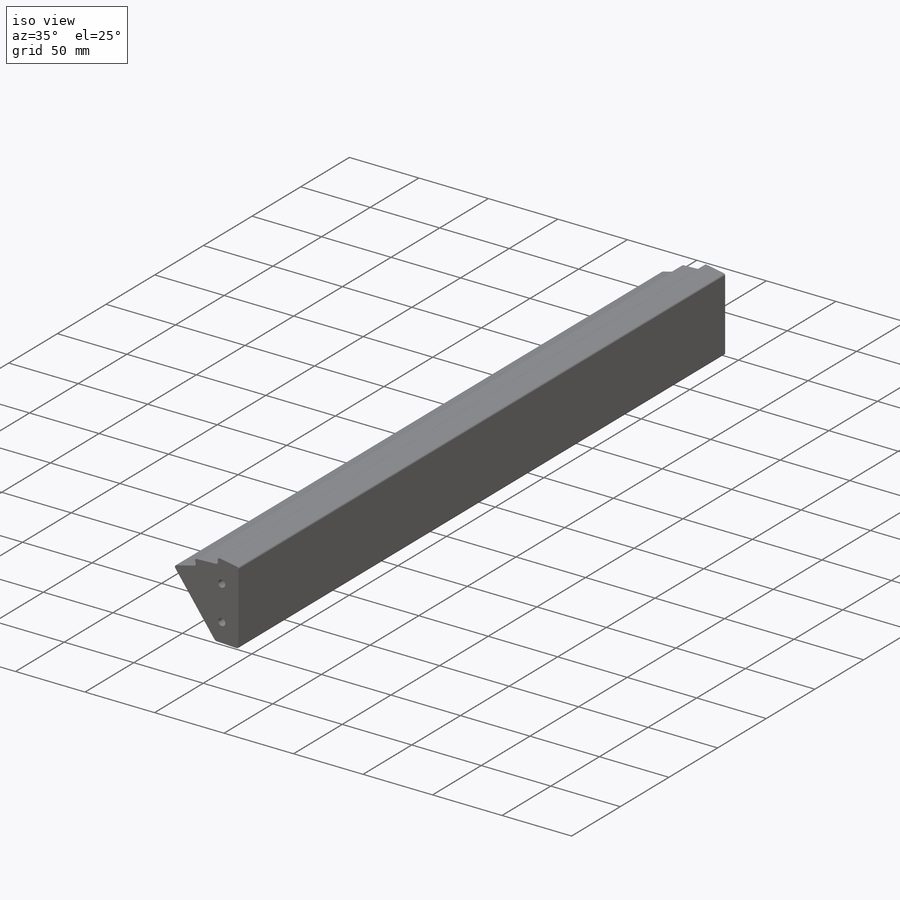
[diagram: iso view]
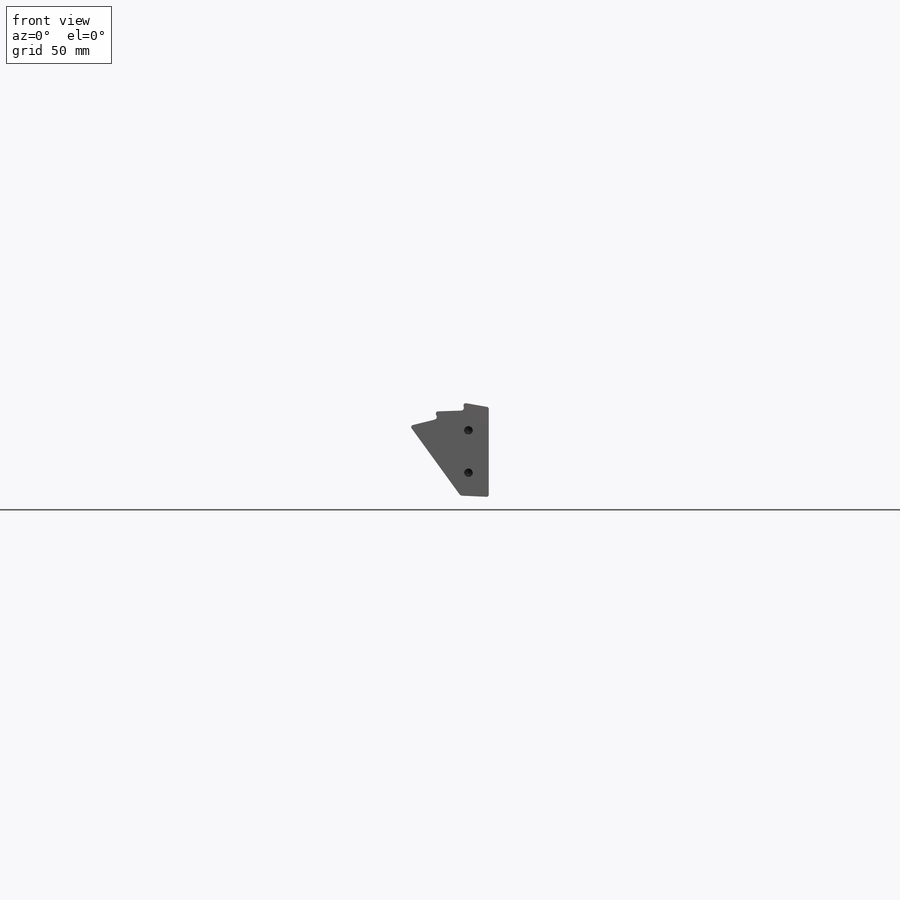
[diagram: front view]
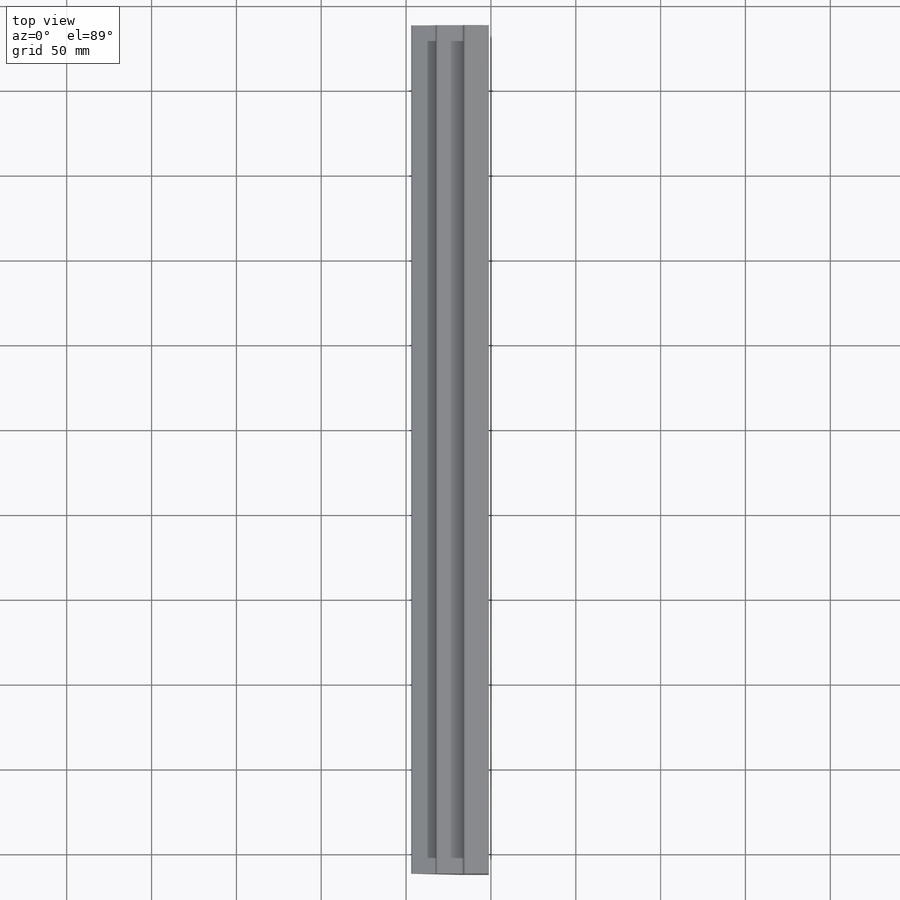
[diagram: top view]
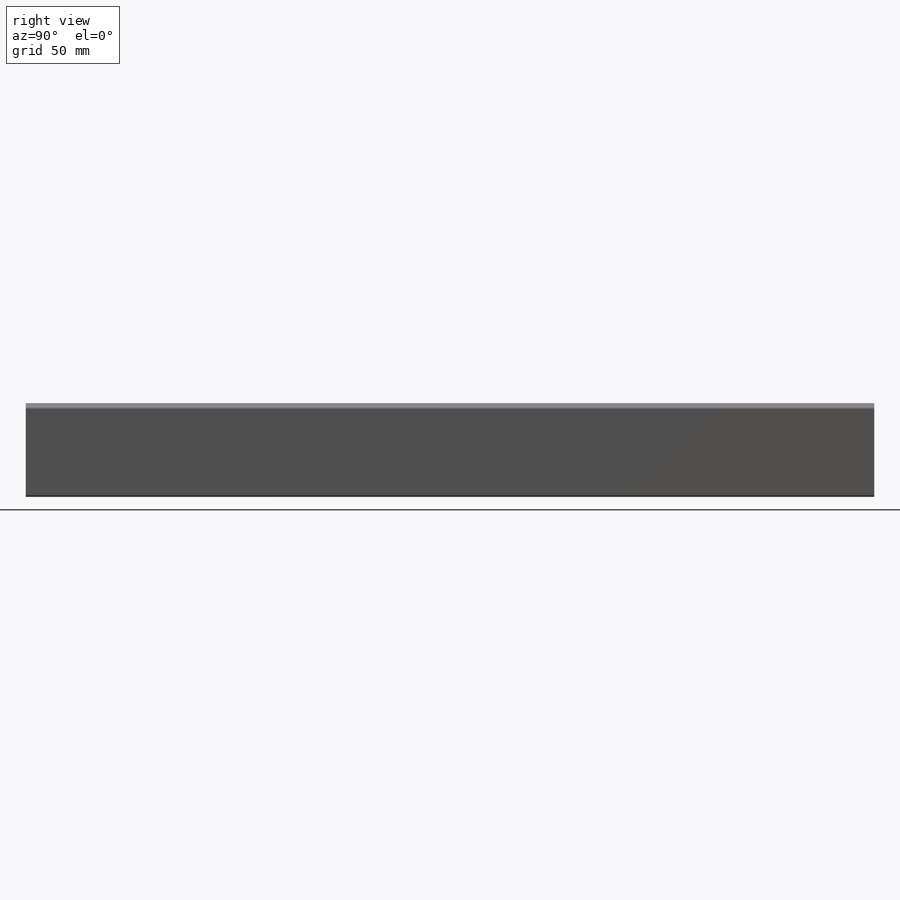
[diagram: right view]
SOLIDWORKS PART (.sldprt)
format: sldprt  version: not decoded by parser v0  size: 837,120 bytes
history: native  units: mm
features: sketch x5, thread x4, material x1, extrude x1, delete_body x1, cut_extrude x1, hole x1 (+11 scaffold rows collapsed)
feature tree (25):
  scaffold x11  (default folders/planes/origin — collapsed)
  material  "ladder carbon corrected"
  sketch  "Sketch1"  dims[c1.D1=1.5mm c1.D2=1.5mm c2.D1=~137.50025mm c2.D2=213.5mm c2.D5=0.27mm c2.D6=1.0mm c2.D7=5.0mm]
  sketch  "Sketch2"  dims[D2=0.125mm D1=0.125mm]
  extrude  "Boss-Extrude1"  Depth=75mm
  delete_body  "Body-Delete1"
  sketch  "Sketch3"  dims[D1=500.0mm D2=100.0mm]
  cut_extrude  "Cut-Extrude1"  [1 undecoded]
  hole  "1/4-20 Tapped Hole1"  Diameter=5.1054mm Depth=16.51mm
  sketch  "3DSketch1"  dims[c1.D1=25.0mm c1.D2=~500.138843mm c1.D3=~500.138843mm c2.D2=12.0mm c2.D3=~13.63343mm]
  sketch  "Sketch4"  dims[hole-wizard template sketch: 50 standard entries collapsed; hole parameters above]
  thread  "Hole Thread1"  Diameter=12.7mm  [1 undecoded]
  thread  "Hole Thread2"  Diameter=12.7mm  [1 undecoded]
  thread  "Hole Thread3"  Diameter=12.7mm  [1 undecoded]
  thread  "Hole Thread4"  Diameter=12.7mm  [1 undecoded]
decode coverage: 11 of 13 modeling features carry decoded parameters
note: ~ marks probable driven/reference dimensions
note: 5 parameter values undecoded
note: suppression state not decoded; provenance and decode notes live in map.json
